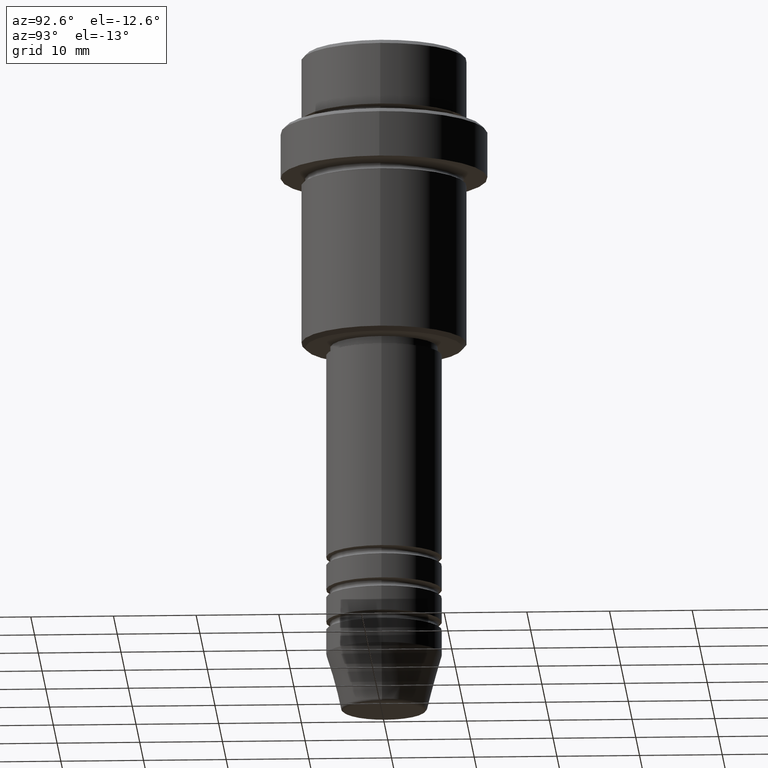
[diagram: clean part render]
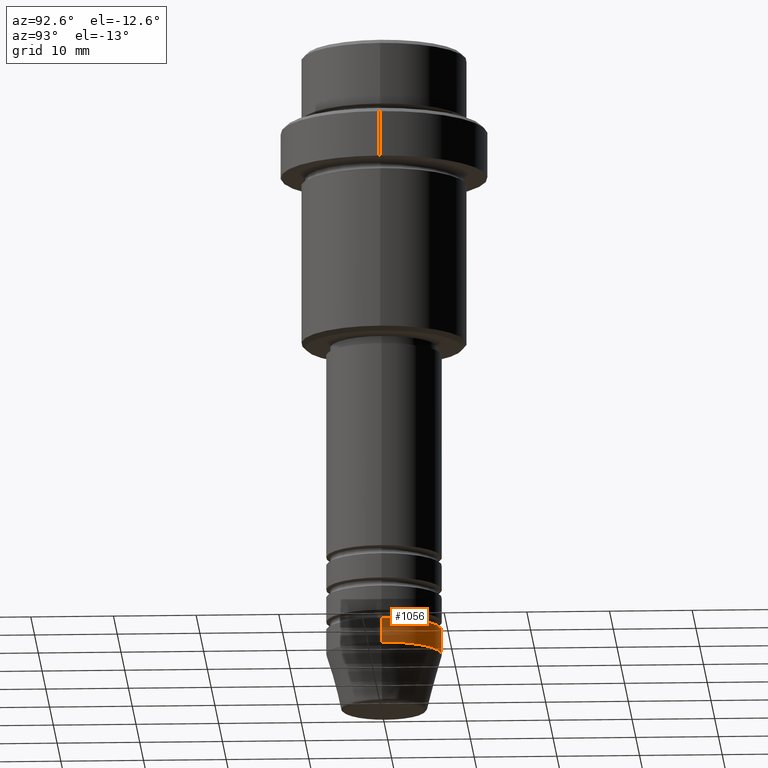
[diagram: same view with one face highlighted and labeled with its STEP entity id]
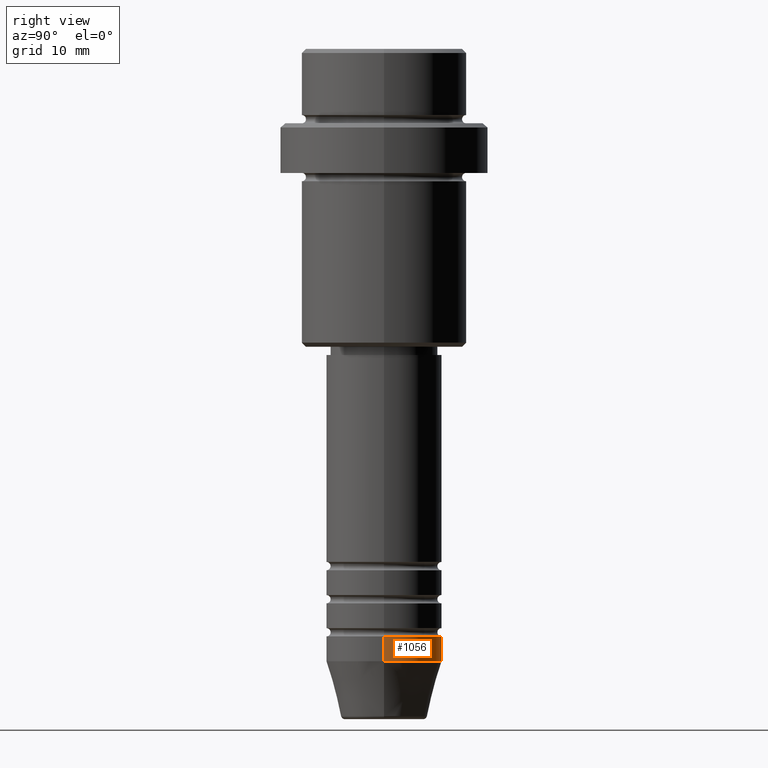
[diagram: same view with one face highlighted and labeled with its STEP entity id]
A machine part, auxiliary view. The second image highlights one B-rep face of the part: STEP entity #1056.
A second angle (right view) of the same face is appended — the face is thin or edge-on in the first view.
In plain terms, the highlighted cylindrical surface (partial cylindrical patch) has radius 7 mm, axis along (-0, -0, 1).
Its self-contained STEP definition (entity closure, byte-faithful):
#26 = DIRECTION ( 'NONE',  ( 1.000000000000000000, 0.000000000000000000, 0.000000000000000000 ) ) ;
#29 = CARTESIAN_POINT ( 'NONE',  ( 0.000000000000000000, 0.000000000000000000, -71.00000000000000000 ) ) ;
#59 = VECTOR ( 'NONE', #1095, 1000.000000000000000 ) ;
#70 = ORIENTED_EDGE ( 'NONE', *, *, #1144, .F. ) ;
#73 = CIRCLE ( 'NONE', #734, 7.000000000000000000 ) ;
#119 = CARTESIAN_POINT ( 'NONE',  ( -7.000000000000000000, 8.572527594031473190E-16, 0.000000000000000000 ) ) ;
#137 = CARTESIAN_POINT ( 'NONE',  ( 7.000000000000000000, 0.000000000000000000, -74.00000000000000000 ) ) ;
#168 = ORIENTED_EDGE ( 'NONE', *, *, #948, .T. ) ;
#203 = VERTEX_POINT ( 'NONE', #806 ) ;
#307 = VECTOR ( 'NONE', #1253, 1000.000000000000000 ) ;
#339 = VERTEX_POINT ( 'NONE', #137 ) ;
#352 = CYLINDRICAL_SURFACE ( 'NONE', #1201, 7.000000000000000000 ) ;
#356 = CARTESIAN_POINT ( 'NONE',  ( -7.000000000000000000, 8.572527594031473190E-16, -74.00000000000000000 ) ) ;
#367 = CARTESIAN_POINT ( 'NONE',  ( 7.000000000000000000, 0.000000000000000000, -71.00000000000000000 ) ) ;
#388 = ORIENTED_EDGE ( 'NONE', *, *, #1334, .F. ) ;
#425 = AXIS2_PLACEMENT_3D ( 'NONE', #1284, #936, #1184 ) ;
#428 = VERTEX_POINT ( 'NONE', #367 ) ;
#552 = LINE ( 'NONE', #119, #59 ) ;
#570 = CARTESIAN_POINT ( 'NONE',  ( 0.000000000000000000, 0.000000000000000000, 0.000000000000000000 ) ) ;
#600 = CIRCLE ( 'NONE', #425, 7.000000000000000000 ) ;
#734 = AXIS2_PLACEMENT_3D ( 'NONE', #29, #791, #26 ) ;
#788 = DIRECTION ( 'NONE',  ( -0.000000000000000000, -0.000000000000000000, 1.000000000000000000 ) ) ;
#791 = DIRECTION ( 'NONE',  ( -0.000000000000000000, -0.000000000000000000, 1.000000000000000000 ) ) ;
#800 = EDGE_CURVE ( 'NONE', #339, #1384, #600, .T. ) ;
#806 = CARTESIAN_POINT ( 'NONE',  ( -7.000000000000000000, 8.572527594031473190E-16, -71.00000000000000000 ) ) ;
#936 = DIRECTION ( 'NONE',  ( -0.000000000000000000, -0.000000000000000000, 1.000000000000000000 ) ) ;
#948 = EDGE_CURVE ( 'NONE', #1384, #203, #552, .T. ) ;
#983 = EDGE_LOOP ( 'NONE', ( #1188, #168, #388, #70 ) ) ;
#1002 = DIRECTION ( 'NONE',  ( 1.000000000000000000, 0.000000000000000000, 0.000000000000000000 ) ) ;
#1056 = ADVANCED_FACE ( 'NONE', ( #1113 ), #352, .T. ) ;
#1095 = DIRECTION ( 'NONE',  ( -0.000000000000000000, -0.000000000000000000, 1.000000000000000000 ) ) ;
#1113 = FACE_OUTER_BOUND ( 'NONE', #983, .T. ) ;
#1144 = EDGE_CURVE ( 'NONE', #339, #428, #1353, .T. ) ;
#1184 = DIRECTION ( 'NONE',  ( 1.000000000000000000, 0.000000000000000000, 0.000000000000000000 ) ) ;
#1188 = ORIENTED_EDGE ( 'NONE', *, *, #800, .T. ) ;
#1201 = AXIS2_PLACEMENT_3D ( 'NONE', #570, #788, #1002 ) ;
#1253 = DIRECTION ( 'NONE',  ( -0.000000000000000000, -0.000000000000000000, 1.000000000000000000 ) ) ;
#1284 = CARTESIAN_POINT ( 'NONE',  ( 0.000000000000000000, 0.000000000000000000, -74.00000000000000000 ) ) ;
#1334 = EDGE_CURVE ( 'NONE', #428, #203, #73, .T. ) ;
#1347 = CARTESIAN_POINT ( 'NONE',  ( 7.000000000000000000, 0.000000000000000000, 0.000000000000000000 ) ) ;
#1353 = LINE ( 'NONE', #1347, #307 ) ;
#1384 = VERTEX_POINT ( 'NONE', #356 ) ;